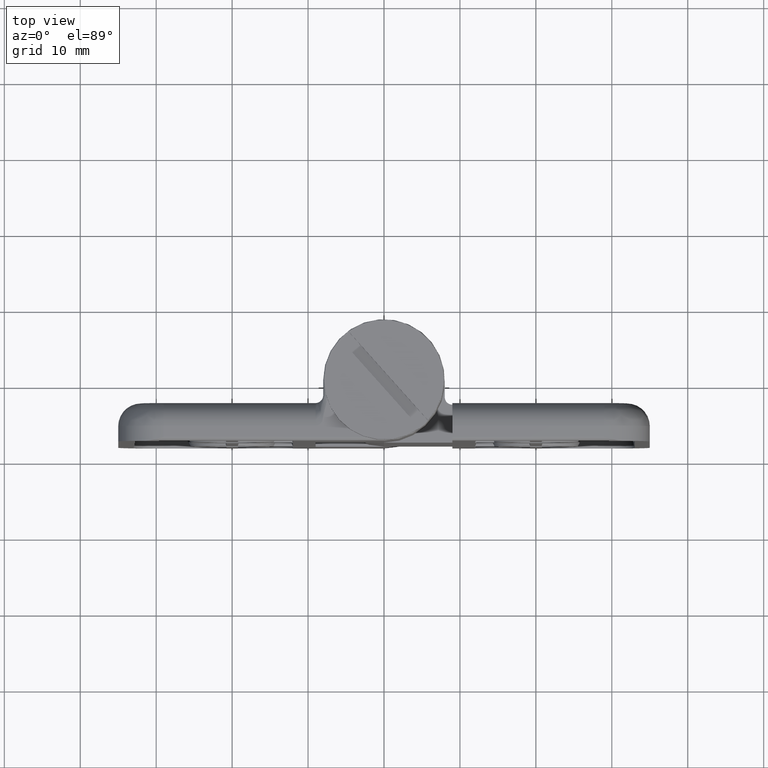
[diagram: clean part render]
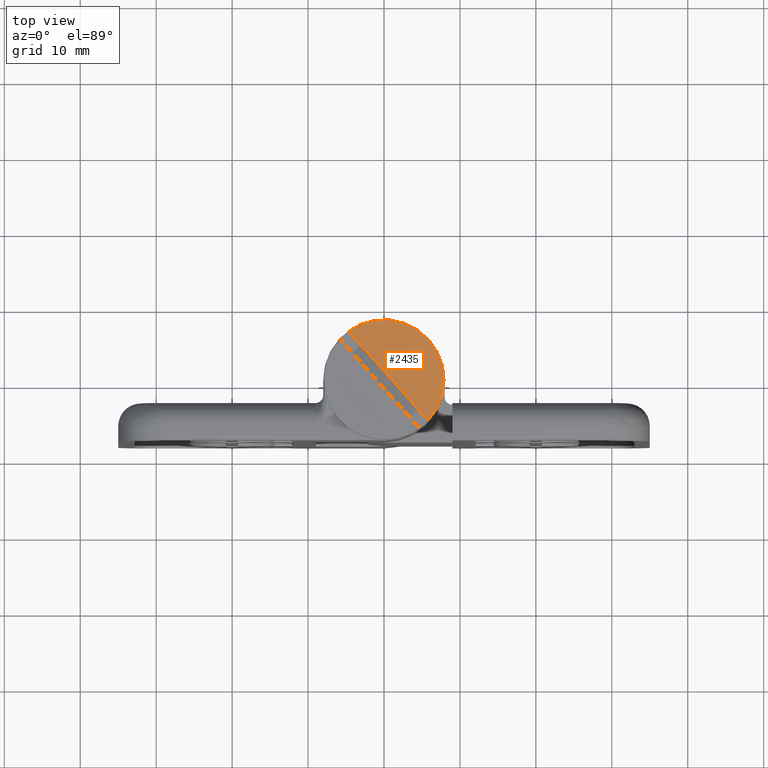
[diagram: same view with one face highlighted and labeled with its STEP entity id]
A machine part, top view. The second image highlights one B-rep face of the part: STEP entity #2435.
In plain terms, the highlighted planar face has unit normal (0, 0, 1).
Its self-contained STEP definition (entity closure, byte-faithful):
#120=LINE('',#3703,#294);
#294=VECTOR('',#2943,15.7286363045243);
#604=FACE_OUTER_BOUND('',#772,.T.);
#772=EDGE_LOOP('',(#1700,#1701));
#983=CIRCLE('',#2617,7.9);
#1114=VERTEX_POINT('',#3699);
#1116=VERTEX_POINT('',#3702);
#1348=EDGE_CURVE('',#1116,#1114,#120,.T.);
#1353=EDGE_CURVE('',#1114,#1116,#983,.T.);
#1700=ORIENTED_EDGE('',*,*,#1348,.T.);
#1701=ORIENTED_EDGE('',*,*,#1353,.T.);
#2347=PLANE('',#2616);
#2435=ADVANCED_FACE('',(#604),#2347,.T.);
#2616=AXIS2_PLACEMENT_3D('',#3710,#2952,#2953);
#2617=AXIS2_PLACEMENT_3D('',#3711,#2954,#2955);
#2943=DIRECTION('',(0.,0.,1.));
#2952=DIRECTION('center_axis',(0.,-1.,0.));
#2953=DIRECTION('ref_axis',(0.,0.,-1.));
#2954=DIRECTION('center_axis',(0.,-1.,0.));
#2955=DIRECTION('ref_axis',(1.,0.,0.));
#3699=CARTESIAN_POINT('',(-0.75,0.,7.86431815226215));
#3702=CARTESIAN_POINT('',(-0.75,0.,-7.86431815226215));
#3703=CARTESIAN_POINT('',(-0.75,-9.86076131526265E-31,-4.68128831206632));
#3710=CARTESIAN_POINT('Origin',(0.,-9.86076131526265E-31,0.));
#3711=CARTESIAN_POINT('Origin',(0.,4.44089209850063E-15,0.));